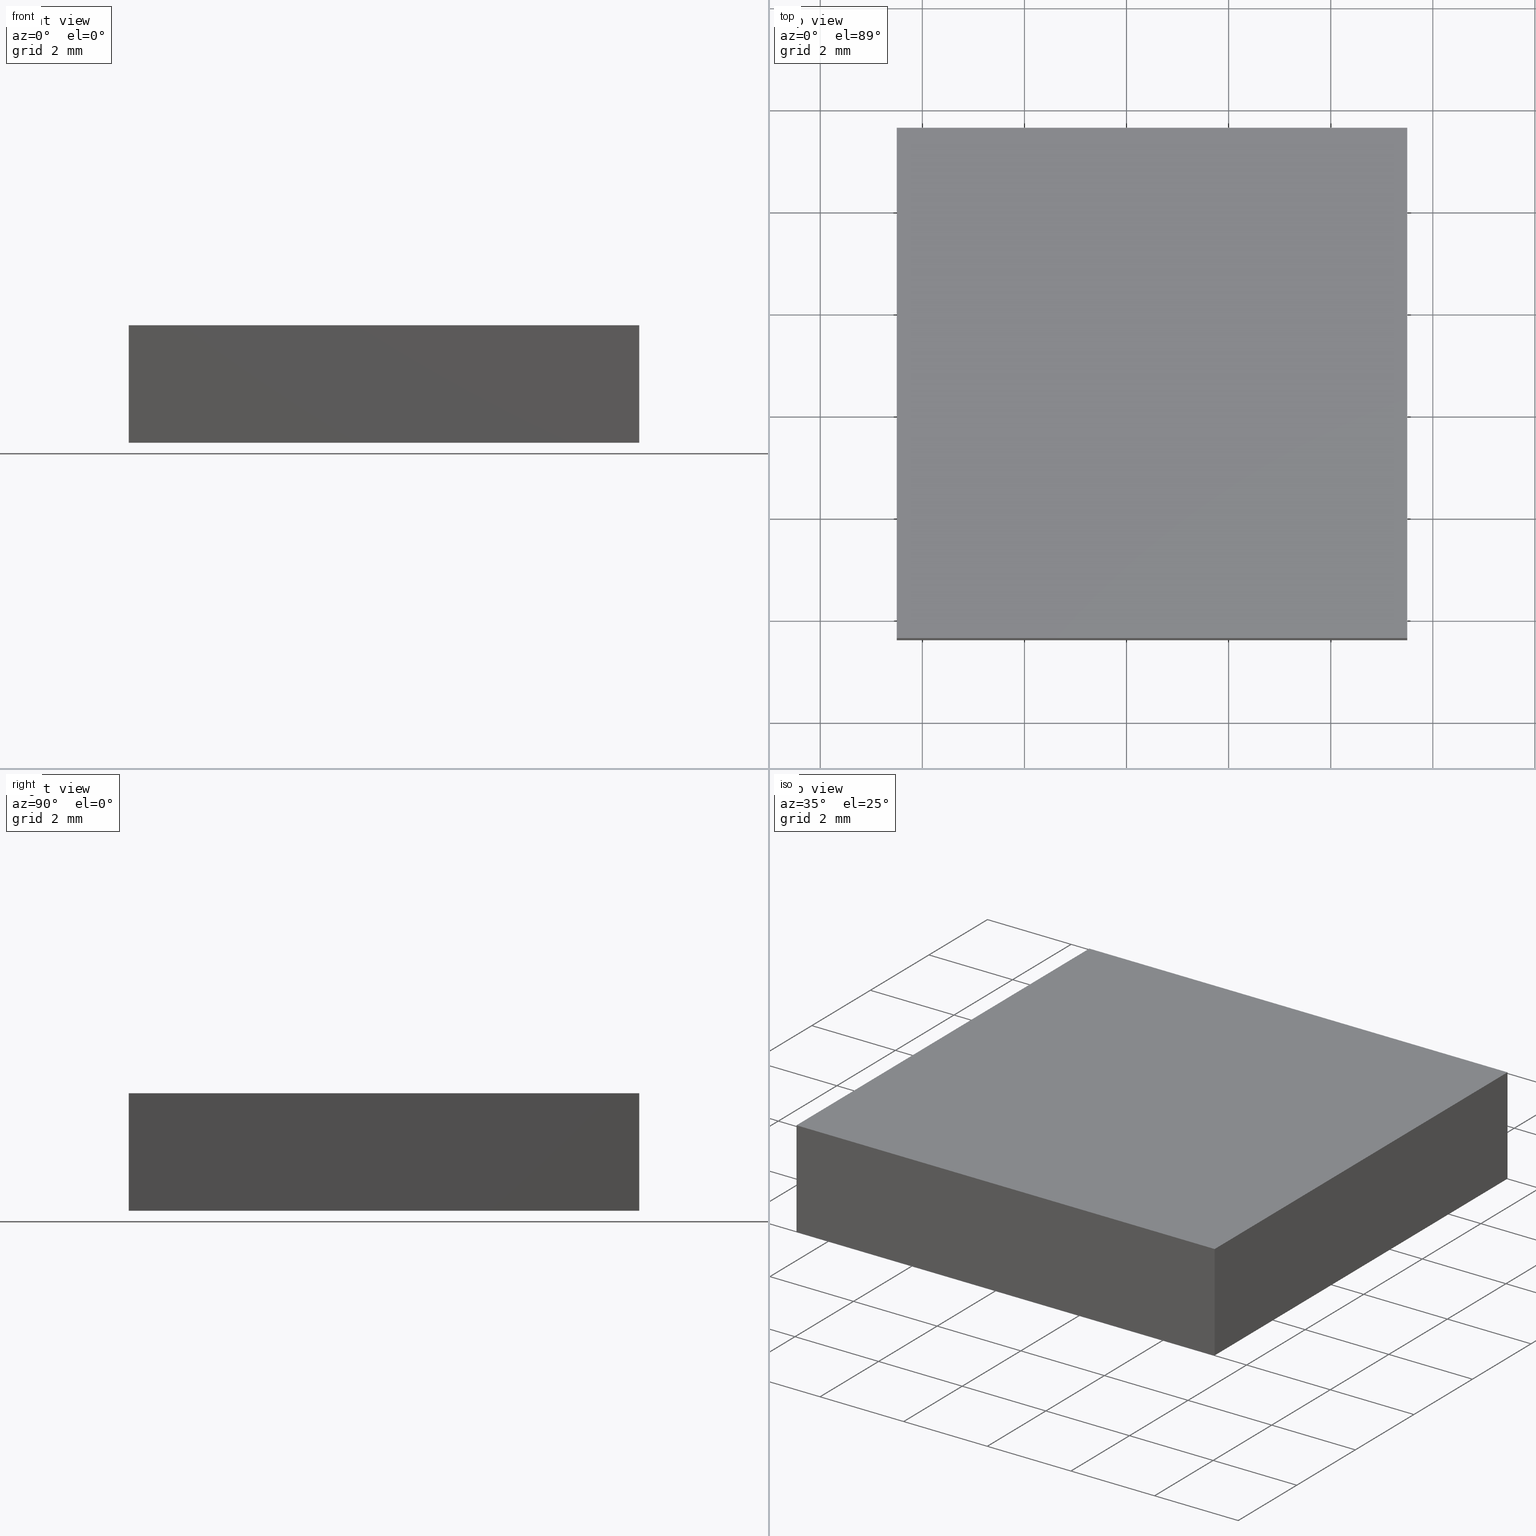
[diagram: canonical four-view strip — front | top / right | iso, engineering-drawing reading convention]
A machine part, canonical four-view strip (front | top / right | iso — engineering-drawing reading convention). The complete STEP part file that produces these views, byte-faithful:
ISO-10303-21;
HEADER;
FILE_DESCRIPTION (( 'STEP AP214' ),
    '1' );
FILE_NAME ('302505.STEP',
    '2019-08-13T03:06:25',
    ( '' ),
    ( '' ),
    'SwSTEP 2.0',
    'SolidWorks 2016',
    '' );
FILE_SCHEMA (( 'AUTOMOTIVE_DESIGN' ));
ENDSEC;

DATA;
#1 = EDGE_CURVE ( 'NONE', #139, #180, #64, .T. ) ;
#2 = LINE ( 'NONE', #51, #152 ) ;
#3 = ORIENTED_EDGE ( 'NONE', *, *, #133, .F. ) ;
#4 = ADVANCED_FACE ( 'NONE', ( #126 ), #38, .F. ) ;
#5 = PLANE ( 'NONE',  #143 ) ;
#6 = VECTOR ( 'NONE', #49, 1000.000000000000000 ) ;
#7 = DIRECTION ( 'NONE',  ( -0.0000000000000000000, -0.0000000000000000000, -1.000000000000000000 ) ) ;
#8 = DIRECTION ( 'NONE',  ( 6.938893903907232300E-016, -1.000000000000000000, 0.0000000000000000000 ) ) ;
#9 = ORIENTED_EDGE ( 'NONE', *, *, #193, .F. ) ;
#10 = CARTESIAN_POINT ( 'NONE',  ( 45.49917431035402900, 29.62529673381063600, 0.0000000000000000000 ) ) ;
#11 = DIRECTION ( 'NONE',  ( 0.0000000000000000000, -0.0000000000000000000, -1.000000000000000000 ) ) ;
#12 =( NAMED_UNIT ( * ) PLANE_ANGLE_UNIT ( ) SI_UNIT ( $, .RADIAN. ) );
#13 = PRODUCT_CONTEXT ( 'NONE', #170, 'mechanical' ) ;
#14 = EDGE_CURVE ( 'NONE', #112, #180, #2, .T. ) ;
#15 = LINE ( 'NONE', #118, #176 ) ;
#16 = EDGE_LOOP ( 'NONE', ( #69, #45, #40, #79 ) ) ;
#17 = PRESENTATION_LAYER_ASSIGNMENT (  '', '', ( #48 ) ) ;
#18 = AXIS2_PLACEMENT_3D ( 'NONE', #192, #52, #54 ) ;
#19 = VECTOR ( 'NONE', #166, 1000.000000000000000 ) ;
#20 = CARTESIAN_POINT ( 'NONE',  ( 45.49917431035402900, 29.62529673381063600, 2.299999999999999800 ) ) ;
#21 = DIRECTION ( 'NONE',  ( 0.0000000000000000000, -1.000000000000000000, 0.0000000000000000000 ) ) ;
#22 = ADVANCED_FACE ( 'NONE', ( #167 ), #73, .F. ) ;
#23 = CARTESIAN_POINT ( 'NONE',  ( 35.49917431035403600, 19.62529673381063900, 2.299999999999999800 ) ) ;
#24 = LINE ( 'NONE', #194, #6 ) ;
#25 = DIRECTION ( 'NONE',  ( 0.0000000000000000000, -1.000000000000000000, 0.0000000000000000000 ) ) ;
#26 = CARTESIAN_POINT ( 'NONE',  ( 0.0000000000000000000, 0.0000000000000000000, 0.0000000000000000000 ) ) ;
#27 = DIRECTION ( 'NONE',  ( 0.0000000000000000000, 0.0000000000000000000, 1.000000000000000000 ) ) ;
#28 = EDGE_LOOP ( 'NONE', ( #145, #136, #9, #100 ) ) ;
#29 = EDGE_LOOP ( 'NONE', ( #157, #188, #114, #111 ) ) ;
#30 = ORIENTED_EDGE ( 'NONE', *, *, #35, .F. ) ;
#31 = CLOSED_SHELL ( 'NONE', ( #4, #22, #68, #138, #84, #164 ) ) ;
#32 = LINE ( 'NONE', #131, #156 ) ;
#33 = UNCERTAINTY_MEASURE_WITH_UNIT (LENGTH_MEASURE( 1.000000000000000100E-005 ), #196, 'distance_accuracy_value', 'NONE');
#34 = EDGE_LOOP ( 'NONE', ( #160, #153, #30, #75 ) ) ;
#35 = EDGE_CURVE ( 'NONE', #59, #80, #135, .T. ) ;
#36 = DIRECTION ( 'NONE',  ( 1.000000000000000000, 0.0000000000000000000, -0.0000000000000000000 ) ) ;
#37 = DIRECTION ( 'NONE',  ( -1.000000000000000000, -6.938893903907232300E-016, 0.0000000000000000000 ) ) ;
#38 = PLANE ( 'NONE',  #187 ) ;
#39 = SURFACE_STYLE_FILL_AREA ( #171 ) ;
#40 = ORIENTED_EDGE ( 'NONE', *, *, #81, .F. ) ;
#41 = DIRECTION ( 'NONE',  ( -1.000000000000000000, -0.0000000000000000000, -0.0000000000000000000 ) ) ;
#42 = PLANE ( 'NONE',  #65 ) ;
#43 =( LENGTH_UNIT ( ) NAMED_UNIT ( * ) SI_UNIT ( .MILLI., .METRE. ) );
#44 = EDGE_CURVE ( 'NONE', #59, #132, #201, .T. ) ;
#45 = ORIENTED_EDGE ( 'NONE', *, *, #1, .F. ) ;
#46 = SURFACE_STYLE_FILL_AREA ( #185 ) ;
#47 = ADVANCED_BREP_SHAPE_REPRESENTATION ( '302505', ( #134, #141 ), #161 ) ;
#48 = STYLED_ITEM ( 'NONE', ( #103 ), #47 ) ;
#49 = DIRECTION ( 'NONE',  ( 1.000000000000000000, 0.0000000000000000000, 0.0000000000000000000 ) ) ;
#50 = FACE_OUTER_BOUND ( 'NONE', #16, .T. ) ;
#51 = CARTESIAN_POINT ( 'NONE',  ( 35.49917431035403600, 29.62529673381063600, 2.299999999999999800 ) ) ;
#52 = DIRECTION ( 'NONE',  ( 0.0000000000000000000, 1.000000000000000000, 0.0000000000000000000 ) ) ;
#53 = CARTESIAN_POINT ( 'NONE',  ( 35.49917431035403600, 29.62529673381063600, 2.299999999999999800 ) ) ;
#54 = DIRECTION ( 'NONE',  ( 0.0000000000000000000, -0.0000000000000000000, 1.000000000000000000 ) ) ;
#55 = DIRECTION ( 'NONE',  ( -0.0000000000000000000, -0.0000000000000000000, -1.000000000000000000 ) ) ;
#56 = PRODUCT_DEFINITION_FORMATION_WITH_SPECIFIED_SOURCE ( '�κ�', '', #174, .NOT_KNOWN. ) ;
#57 = CARTESIAN_POINT ( 'NONE',  ( 35.49917431035403600, 29.62529673381063600, 2.299999999999999800 ) ) ;
#58 =( NAMED_UNIT ( * ) PLANE_ANGLE_UNIT ( ) SI_UNIT ( $, .RADIAN. ) );
#59 = VERTEX_POINT ( 'NONE', #23 ) ;
#60 = FILL_AREA_STYLE_COLOUR ( '', #83 ) ;
#61 =( NAMED_UNIT ( * ) SI_UNIT ( $, .STERADIAN. ) SOLID_ANGLE_UNIT ( ) );
#62 = FACE_OUTER_BOUND ( 'NONE', #29, .T. ) ;
#63 = STYLED_ITEM ( 'NONE', ( #179 ), #134 ) ;
#64 = LINE ( 'NONE', #123, #19 ) ;
#65 = AXIS2_PLACEMENT_3D ( 'NONE', #26, #182, #183 ) ;
#66 = UNCERTAINTY_MEASURE_WITH_UNIT (LENGTH_MEASURE( 1.000000000000000100E-005 ), #127, 'distance_accuracy_value', 'NONE');
#67 = ORIENTED_EDGE ( 'NONE', *, *, #150, .T. ) ;
#68 = ADVANCED_FACE ( 'NONE', ( #113 ), #177, .F. ) ;
#69 = ORIENTED_EDGE ( 'NONE', *, *, #163, .F. ) ;
#70 = EDGE_CURVE ( 'NONE', #132, #191, #24, .T. ) ;
#71 = ORIENTED_EDGE ( 'NONE', *, *, #14, .T. ) ;
#72 = CARTESIAN_POINT ( 'NONE',  ( 45.49917431035403600, 19.62529673381063900, 2.299999999999999800 ) ) ;
#73 = PLANE ( 'NONE',  #18 ) ;
#74 =( NAMED_UNIT ( * ) PLANE_ANGLE_UNIT ( ) SI_UNIT ( $, .RADIAN. ) );
#75 = ORIENTED_EDGE ( 'NONE', *, *, #44, .T. ) ;
#76 = APPLICATION_PROTOCOL_DEFINITION ( 'draft international standard', 'automotive_design', 1998, #170 ) ;
#77 = AXIS2_PLACEMENT_3D ( 'NONE', #20, #37, #8 ) ;
#78 = LINE ( 'NONE', #93, #99 ) ;
#79 = ORIENTED_EDGE ( 'NONE', *, *, #70, .F. ) ;
#80 = VERTEX_POINT ( 'NONE', #72 ) ;
#81 = EDGE_CURVE ( 'NONE', #191, #139, #165, .T. ) ;
#82 = EDGE_CURVE ( 'NONE', #112, #59, #186, .T. ) ;
#83 = COLOUR_RGB ( '',1.000000000000000000, 1.000000000000000000, 1.000000000000000000 ) ;
#84 = ADVANCED_FACE ( 'NONE', ( #62 ), #5, .T. ) ;
#85 = CARTESIAN_POINT ( 'NONE',  ( 35.49917431035403600, 19.62529673381063900, 2.299999999999999800 ) ) ;
#86 = DIRECTION ( 'NONE',  ( -0.0000000000000000000, 0.0000000000000000000, -1.000000000000000000 ) ) ;
#87 = PRESENTATION_LAYER_ASSIGNMENT (  '', '', ( #63 ) ) ;
#88 = DIRECTION ( 'NONE',  ( -0.0000000000000000000, -0.0000000000000000000, -1.000000000000000000 ) ) ;
#89 = DIRECTION ( 'NONE',  ( 1.000000000000000000, 0.0000000000000000000, 0.0000000000000000000 ) ) ;
#90 = ORIENTED_EDGE ( 'NONE', *, *, #163, .T. ) ;
#91 = DIRECTION ( 'NONE',  ( 0.0000000000000000000, -1.000000000000000000, 0.0000000000000000000 ) ) ;
#92 = MECHANICAL_DESIGN_GEOMETRIC_PRESENTATION_REPRESENTATION (  '', ( #48 ), #137 ) ;
#93 = CARTESIAN_POINT ( 'NONE',  ( 35.49917431035403600, 29.62529673381063600, 0.0000000000000000000 ) ) ;
#94 = PLANE ( 'NONE',  #104 ) ;
#95 = PRODUCT_RELATED_PRODUCT_CATEGORY ( 'part', '', ( #174 ) ) ;
#96 = LINE ( 'NONE', #105, #115 ) ;
#97 = VERTEX_POINT ( 'NONE', #101 ) ;
#98 = PRODUCT_DEFINITION_SHAPE ( 'NONE', 'NONE',  #202 ) ;
#99 = VECTOR ( 'NONE', #91, 1000.000000000000000 ) ;
#100 = ORIENTED_EDGE ( 'NONE', *, *, #178, .T. ) ;
#101 = CARTESIAN_POINT ( 'NONE',  ( 45.49917431035402900, 29.62529673381063600, 2.299999999999999800 ) ) ;
#102 = DIRECTION ( 'NONE',  ( 1.000000000000000000, 0.0000000000000000000, 0.0000000000000000000 ) ) ;
#103 = PRESENTATION_STYLE_ASSIGNMENT (( #199 ) ) ;
#104 = AXIS2_PLACEMENT_3D ( 'NONE', #168, #25, #11 ) ;
#105 = CARTESIAN_POINT ( 'NONE',  ( 35.49917431035403600, 29.62529673381063600, 2.299999999999999800 ) ) ;
#106 =( NAMED_UNIT ( * ) SI_UNIT ( $, .STERADIAN. ) SOLID_ANGLE_UNIT ( ) );
#107 = SURFACE_SIDE_STYLE ('',( #46 ) ) ;
#108 = COLOUR_RGB ( '',1.000000000000000000, 1.000000000000000000, 1.000000000000000000 ) ;
#109 = DIRECTION ( 'NONE',  ( -6.938893903907232300E-016, 1.000000000000000000, -0.0000000000000000000 ) ) ;
#110 = VECTOR ( 'NONE', #102, 1000.000000000000000 ) ;
#111 = ORIENTED_EDGE ( 'NONE', *, *, #193, .T. ) ;
#112 = VERTEX_POINT ( 'NONE', #57 ) ;
#113 = FACE_OUTER_BOUND ( 'NONE', #148, .T. ) ;
#114 = ORIENTED_EDGE ( 'NONE', *, *, #133, .T. ) ;
#115 = VECTOR ( 'NONE', #41, 1000.000000000000000 ) ;
#116 = CARTESIAN_POINT ( 'NONE',  ( 0.0000000000000000000, 0.0000000000000000000, 2.299999999999999800 ) ) ;
#117 = CARTESIAN_POINT ( 'NONE',  ( 35.49917431035403600, 29.62529673381063600, 2.299999999999999800 ) ) ;
#118 = CARTESIAN_POINT ( 'NONE',  ( 45.49917431035403600, 19.62529673381063900, 2.299999999999999800 ) ) ;
#119 =( NAMED_UNIT ( * ) SI_UNIT ( $, .STERADIAN. ) SOLID_ANGLE_UNIT ( ) );
#120 = APPLICATION_PROTOCOL_DEFINITION ( 'draft international standard', 'automotive_design', 1998, #149 ) ;
#121 = VECTOR ( 'NONE', #21, 1000.000000000000000 ) ;
#122 = UNCERTAINTY_MEASURE_WITH_UNIT (LENGTH_MEASURE( 1.000000000000000100E-005 ), #43, 'distance_accuracy_value', 'NONE');
#123 = CARTESIAN_POINT ( 'NONE',  ( 35.49917431035403600, 29.62529673381063600, 0.0000000000000000000 ) ) ;
#124 = LINE ( 'NONE', #173, #125 ) ;
#125 = VECTOR ( 'NONE', #151, 1000.000000000000000 ) ;
#126 = FACE_OUTER_BOUND ( 'NONE', #189, .T. ) ;
#127 =( LENGTH_UNIT ( ) NAMED_UNIT ( * ) SI_UNIT ( .MILLI., .METRE. ) );
#128 = SURFACE_STYLE_USAGE ( .BOTH. , #146 ) ;
#129 = CARTESIAN_POINT ( 'NONE',  ( 35.49917431035403600, 29.62529673381063600, 0.0000000000000000000 ) ) ;
#130 = FACE_OUTER_BOUND ( 'NONE', #28, .T. ) ;
#131 = CARTESIAN_POINT ( 'NONE',  ( 45.49917431035402900, 29.62529673381063600, 2.299999999999999800 ) ) ;
#132 = VERTEX_POINT ( 'NONE', #198 ) ;
#133 = EDGE_CURVE ( 'NONE', #80, #97, #32, .T. ) ;
#134 = MANIFOLD_SOLID_BREP ( '͹̨-����1', #31 ) ;
#135 = LINE ( 'NONE', #85, #110 ) ;
#136 = ORIENTED_EDGE ( 'NONE', *, *, #14, .F. ) ;
#137 =( GEOMETRIC_REPRESENTATION_CONTEXT ( 3 ) GLOBAL_UNCERTAINTY_ASSIGNED_CONTEXT ( ( #66 ) ) GLOBAL_UNIT_ASSIGNED_CONTEXT ( ( #127, #12, #119 ) ) REPRESENTATION_CONTEXT ( 'NONE', 'WORKASPACE' ) );
#138 = ADVANCED_FACE ( 'NONE', ( #130 ), #94, .F. ) ;
#139 = VERTEX_POINT ( 'NONE', #10 ) ;
#140 = DIRECTION ( 'NONE',  ( -0.0000000000000000000, 0.0000000000000000000, 1.000000000000000000 ) ) ;
#141 = AXIS2_PLACEMENT_3D ( 'NONE', #200, #27, #89 ) ;
#142 = CARTESIAN_POINT ( 'NONE',  ( 35.49917431035403600, 19.62529673381063900, 2.299999999999999800 ) ) ;
#143 = AXIS2_PLACEMENT_3D ( 'NONE', #116, #140, #162 ) ;
#144 = CARTESIAN_POINT ( 'NONE',  ( 45.49917431035402900, 29.62529673381063600, 0.0000000000000000000 ) ) ;
#145 = ORIENTED_EDGE ( 'NONE', *, *, #1, .T. ) ;
#146 = SURFACE_SIDE_STYLE ('',( #39 ) ) ;
#147 = CARTESIAN_POINT ( 'NONE',  ( 45.49917431035403600, 19.62529673381063900, 0.0000000000000000000 ) ) ;
#148 = EDGE_LOOP ( 'NONE', ( #154, #169, #3, #67 ) ) ;
#149 = APPLICATION_CONTEXT ( 'automotive_design' ) ;
#150 = EDGE_CURVE ( 'NONE', #80, #191, #15, .T. ) ;
#151 = DIRECTION ( 'NONE',  ( -0.0000000000000000000, -0.0000000000000000000, -1.000000000000000000 ) ) ;
#152 = VECTOR ( 'NONE', #88, 1000.000000000000000 ) ;
#153 = ORIENTED_EDGE ( 'NONE', *, *, #150, .F. ) ;
#154 = ORIENTED_EDGE ( 'NONE', *, *, #81, .T. ) ;
#155 = PRODUCT_DEFINITION_CONTEXT ( 'detailed design', #149, 'design' ) ;
#156 = VECTOR ( 'NONE', #109, 1000.000000000000000 ) ;
#157 = ORIENTED_EDGE ( 'NONE', *, *, #82, .T. ) ;
#158 = MECHANICAL_DESIGN_GEOMETRIC_PRESENTATION_REPRESENTATION (  '', ( #63 ), #190 ) ;
#159 = SHAPE_DEFINITION_REPRESENTATION ( #98, #47 ) ;
#160 = ORIENTED_EDGE ( 'NONE', *, *, #70, .T. ) ;
#161 =( GEOMETRIC_REPRESENTATION_CONTEXT ( 3 ) GLOBAL_UNCERTAINTY_ASSIGNED_CONTEXT ( ( #122 ) ) GLOBAL_UNIT_ASSIGNED_CONTEXT ( ( #43, #58, #61 ) ) REPRESENTATION_CONTEXT ( 'NONE', 'WORKASPACE' ) );
#162 = DIRECTION ( 'NONE',  ( 1.000000000000000000, 0.0000000000000000000, 0.0000000000000000000 ) ) ;
#163 = EDGE_CURVE ( 'NONE', #180, #132, #78, .T. ) ;
#164 = ADVANCED_FACE ( 'NONE', ( #50 ), #42, .F. ) ;
#165 = LINE ( 'NONE', #144, #172 ) ;
#166 = DIRECTION ( 'NONE',  ( -1.000000000000000000, -0.0000000000000000000, -0.0000000000000000000 ) ) ;
#167 = FACE_OUTER_BOUND ( 'NONE', #34, .T. ) ;
#168 = CARTESIAN_POINT ( 'NONE',  ( 35.49917431035403600, 29.62529673381063600, 2.299999999999999800 ) ) ;
#169 = ORIENTED_EDGE ( 'NONE', *, *, #178, .F. ) ;
#170 = APPLICATION_CONTEXT ( 'automotive_design' ) ;
#171 = FILL_AREA_STYLE ('',( #60 ) ) ;
#172 = VECTOR ( 'NONE', #181, 1000.000000000000000 ) ;
#173 = CARTESIAN_POINT ( 'NONE',  ( 45.49917431035402900, 29.62529673381063600, 2.299999999999999800 ) ) ;
#174 = PRODUCT ( '302505', '302505', '', ( #13 ) ) ;
#175 = VECTOR ( 'NONE', #7, 1000.000000000000000 ) ;
#176 = VECTOR ( 'NONE', #55, 1000.000000000000000 ) ;
#177 = PLANE ( 'NONE',  #77 ) ;
#178 = EDGE_CURVE ( 'NONE', #97, #139, #124, .T. ) ;
#179 = PRESENTATION_STYLE_ASSIGNMENT (( #128 ) ) ;
#180 = VERTEX_POINT ( 'NONE', #129 ) ;
#181 = DIRECTION ( 'NONE',  ( -6.938893903907232300E-016, 1.000000000000000000, -0.0000000000000000000 ) ) ;
#182 = DIRECTION ( 'NONE',  ( -0.0000000000000000000, 0.0000000000000000000, 1.000000000000000000 ) ) ;
#183 = DIRECTION ( 'NONE',  ( 1.000000000000000000, 0.0000000000000000000, 0.0000000000000000000 ) ) ;
#184 = FILL_AREA_STYLE_COLOUR ( '', #108 ) ;
#185 = FILL_AREA_STYLE ('',( #184 ) ) ;
#186 = LINE ( 'NONE', #53, #121 ) ;
#187 = AXIS2_PLACEMENT_3D ( 'NONE', #117, #36, #86 ) ;
#188 = ORIENTED_EDGE ( 'NONE', *, *, #35, .T. ) ;
#189 = EDGE_LOOP ( 'NONE', ( #90, #195, #197, #71 ) ) ;
#190 =( GEOMETRIC_REPRESENTATION_CONTEXT ( 3 ) GLOBAL_UNCERTAINTY_ASSIGNED_CONTEXT ( ( #33 ) ) GLOBAL_UNIT_ASSIGNED_CONTEXT ( ( #196, #74, #106 ) ) REPRESENTATION_CONTEXT ( 'NONE', 'WORKASPACE' ) );
#191 = VERTEX_POINT ( 'NONE', #147 ) ;
#192 = CARTESIAN_POINT ( 'NONE',  ( 35.49917431035403600, 19.62529673381063900, 2.299999999999999800 ) ) ;
#193 = EDGE_CURVE ( 'NONE', #97, #112, #96, .T. ) ;
#194 = CARTESIAN_POINT ( 'NONE',  ( 35.49917431035403600, 19.62529673381063900, 0.0000000000000000000 ) ) ;
#195 = ORIENTED_EDGE ( 'NONE', *, *, #44, .F. ) ;
#196 =( LENGTH_UNIT ( ) NAMED_UNIT ( * ) SI_UNIT ( .MILLI., .METRE. ) );
#197 = ORIENTED_EDGE ( 'NONE', *, *, #82, .F. ) ;
#198 = CARTESIAN_POINT ( 'NONE',  ( 35.49917431035403600, 19.62529673381063900, 0.0000000000000000000 ) ) ;
#199 = SURFACE_STYLE_USAGE ( .BOTH. , #107 ) ;
#200 = CARTESIAN_POINT ( 'NONE',  ( 0.0000000000000000000, 0.0000000000000000000, 0.0000000000000000000 ) ) ;
#201 = LINE ( 'NONE', #142, #175 ) ;
#202 = PRODUCT_DEFINITION ( 'δ֪', '', #56, #155 ) ;
ENDSEC;
END-ISO-10303-21;
